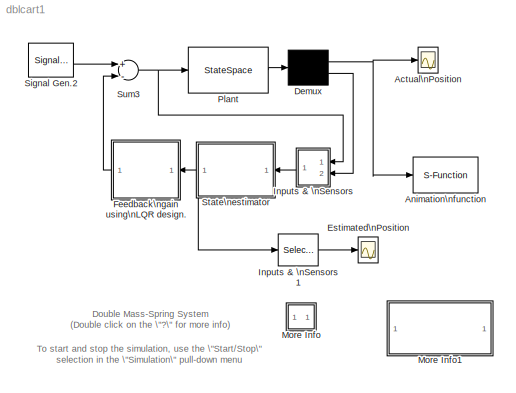
MODEL dblcart1
KIND model
CONFIG PreLoadFcn = load dblcart1
BLOCK [Scope] Actual\nPosition
  DataFormat = Array
  NumInputPorts = 1
  Ports = [1]
  TickLabels = on
  TimeRange = 40.000000
BLOCK [S-Function] Animation\nfunction
  DeleteFcn = if ~isempty(findobj('type','figure','name','dblcart1 Animation'));close('dblcart1 Animation'); end;
  FunctionName = crtanim2
  Parameters = 0.1
  Ports = [1]
BLOCK [Demux] Demux
  Outputs = [2,1]
  Ports = [1, 2]
BLOCK [Scope] Estimated\nPosition
  DataFormat = Array
  NumInputPorts = 1
  Ports = [1]
  TickLabels = on
  TimeRange = 40.000000
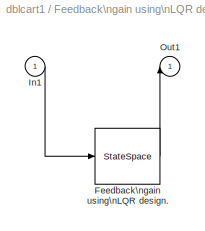
BLOCK [SubSystem] Feedback\ngain using\nLQR design.
  MaskDescription = Matrix Gain
  MaskDisplay = disp('K')
  MaskEnableString = on
  MaskHelp = Matrix Gain block
  MaskIconFrame = on
  MaskIconOpaque = on
  MaskIconRotate = none
  MaskIconUnits = autoscale
  MaskInitialization = k=@1;
  MaskPromptString = K
  MaskStyleString = edit
  MaskToolTipString = on
  MaskTunableValueString = on
  MaskType = Regulator
  MaskValueString = K
  MaskVisibilityString = on
  MinAlgLoopOccurrences = off
  Ports = [1, 1]
  PropExecContextAcrossSSBoundary = on
  RTWSystemCode = Auto
  TreatAsAtomicUnit = off
BLOCK [StateSpace] Feedback\ngain using\nLQR design./Feedback\ngain using\nLQR design.
  A = []
  B = []
  C = []
  D = k
BLOCK [Inport] Feedback\ngain using\nLQR design./In1
  IconDisplay = Port number
  LatchInput = off
  Port = 1
BLOCK [Outport] Feedback\ngain using\nLQR design./Out1
  IconDisplay = Port number
  InitialOutput = 0
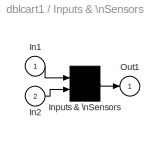
BLOCK [SubSystem] Inputs & \nSensors
  MaskIconFrame = on
  MaskIconOpaque = on
  MaskIconRotate = none
  MaskIconUnits = autoscale
  MinAlgLoopOccurrences = off
  Ports = [2, 1]
  PropExecContextAcrossSSBoundary = on
  RTWSystemCode = Auto
  TreatAsAtomicUnit = off
BLOCK [Inport] Inputs & \nSensors/In1
  IconDisplay = Port number
  LatchInput = off
  Port = 1
BLOCK [Inport] Inputs & \nSensors/In2
  IconDisplay = Port number
  LatchInput = off
  Port = 2
BLOCK [Mux] Inputs & \nSensors/Inputs & \nSensors
  Inputs = 2
  Ports = [2, 1]
BLOCK [Outport] Inputs & \nSensors/Out1
  IconDisplay = Port number
  InitialOutput = 0
BLOCK [Selector] Inputs & \nSensors1
  Elements = [1 3]
  InputPortWidth = 4
  Ports = [1, 1]
BLOCK [SubSystem] More Info
  MaskDisplay = disp('?')
  MaskIconFrame = on
  MaskIconOpaque = on
  MaskIconRotate = none
  MaskIconUnits = autoscale
  MinAlgLoopOccurrences = off
  Ports = []
  PropExecContextAcrossSSBoundary = on
  RTWSystemCode = Auto
  TreatAsAtomicUnit = off
BLOCK [SubSystem] More Info1
  MaskDisplay = disp('Double click\\nhere for\\nSIMULINK Help')
  MaskIconFrame = on
  MaskIconOpaque = on
  MaskIconRotate = none
  MaskIconUnits = autoscale
  MinAlgLoopOccurrences = off
  OpenFcn = simcad(bdroot)
  Ports = []
  PropExecContextAcrossSSBoundary = on
  RTWSystemCode = Auto
  TreatAsAtomicUnit = off
BLOCK [StateSpace] Plant
  A = [0 1 0 0; -ka/m1 0 ka/m1 0; 0 0 0 1;ka/m2 0 -ka/m2 0]
  B = [0; 1; 0; 0]
  C = [1 0 0 0;0 0 1 0;0 0 1 0]
  D = zeros(3,1)
BLOCK [SignalGenerator] Signal Gen.2
  Amplitude = 15
  Frequency = 0.300000
  Ports = [0, 1]
  Units = rad/sec
  WaveForm = square
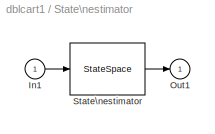
BLOCK [SubSystem] State\nestimator
  MaskIconFrame = on
  MaskIconOpaque = on
  MaskIconRotate = none
  MaskIconUnits = autoscale
  MinAlgLoopOccurrences = off
  Ports = [1, 1]
  PropExecContextAcrossSSBoundary = on
  RTWSystemCode = Auto
  TreatAsAtomicUnit = off
BLOCK [Inport] State\nestimator/In1
  IconDisplay = Port number
  LatchInput = off
  Port = 1
BLOCK [Outport] State\nestimator/Out1
  IconDisplay = Port number
  InitialOutput = 0
BLOCK [StateSpace] State\nestimator/State\nestimator
  A = ae
  B = be
  C = ce
  D = de
BLOCK [Sum] Sum3
  Inputs = +-
  Ports = [2, 1]
ANNOTATION (root): Double Mass-Spring System\n(Double click on the \"?\" for more info)
ANNOTATION (root): To start and stop the simulation, use the \"Start/Stop\"\nselection in the \"Simulation\" pull-down menu
ANNOTATION More Info: Associated with the demo is an animation function that\nwill automatically open a figure window and display to it.
ANNOTATION More Info: In this system, the only sensor is attached to the mass\non the left, and the actuator is attached to the mass on\nthe left. State estimation and LQR control are used.
ANNOTATION More Info: This system models a double spring-mass-damper\nsystem with a periodically varying forcing function.
ANNOTATION More Info1: Associated with the demo is an animation function that\nwill automatically open a figure window and display to it.
ANNOTATION More Info1: This system models a double pendulum system where\nthe rest state has both pendulums hanging vertically.
ANNOTATION More Info1: Try experimenting with different initial conditions for\nalpha and gamma to see the unusal coupling effects.
NET Demux:1 -> Actual\nPosition:1, Animation\nfunction:1
LINE Demux:2 -> Inputs & \nSensors:2
LINE Feedback\ngain using\nLQR design./Feedback\ngain using\nLQR design.:1 -> Feedback\ngain using\nLQR design./Out1:1
LINE Feedback\ngain using\nLQR design./In1:1 -> Feedback\ngain using\nLQR design./Feedback\ngain using\nLQR design.:1
LINE Feedback\ngain using\nLQR design.:1 -> Sum3:2
LINE Inputs & \nSensors/In1:1 -> Inputs & \nSensors/Inputs & \nSensors:1
LINE Inputs & \nSensors/In2:1 -> Inputs & \nSensors/Inputs & \nSensors:2
LINE Inputs & \nSensors/Inputs & \nSensors:1 -> Inputs & \nSensors/Out1:1
LINE Inputs & \nSensors1:1 -> Estimated\nPosition:1
LINE Inputs & \nSensors:1 -> State\nestimator:1
LINE Plant:1 -> Demux:1
LINE Signal Gen.2:1 -> Sum3:1
LINE State\nestimator/In1:1 -> State\nestimator/State\nestimator:1
LINE State\nestimator/State\nestimator:1 -> State\nestimator/Out1:1
NET State\nestimator:1 -> Feedback\ngain using\nLQR design.:1, Inputs & \nSensors1:1
NET Sum3:1 -> Inputs & \nSensors:1, Plant:1
note: NET lines group one-source signal fan-out (src -> all destinations, sorted); 1:1 wires keep LINE
